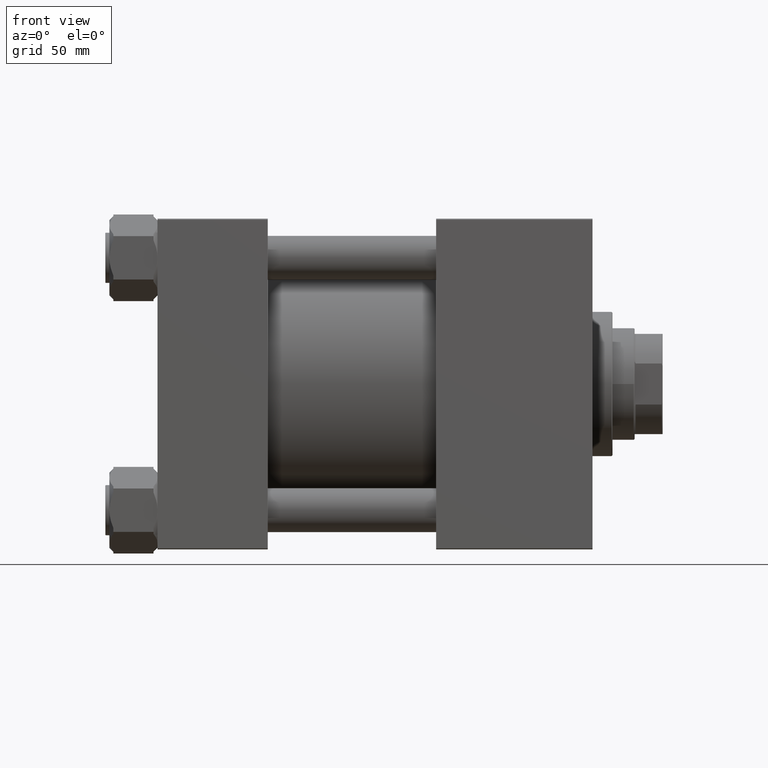
[diagram: clean part render]
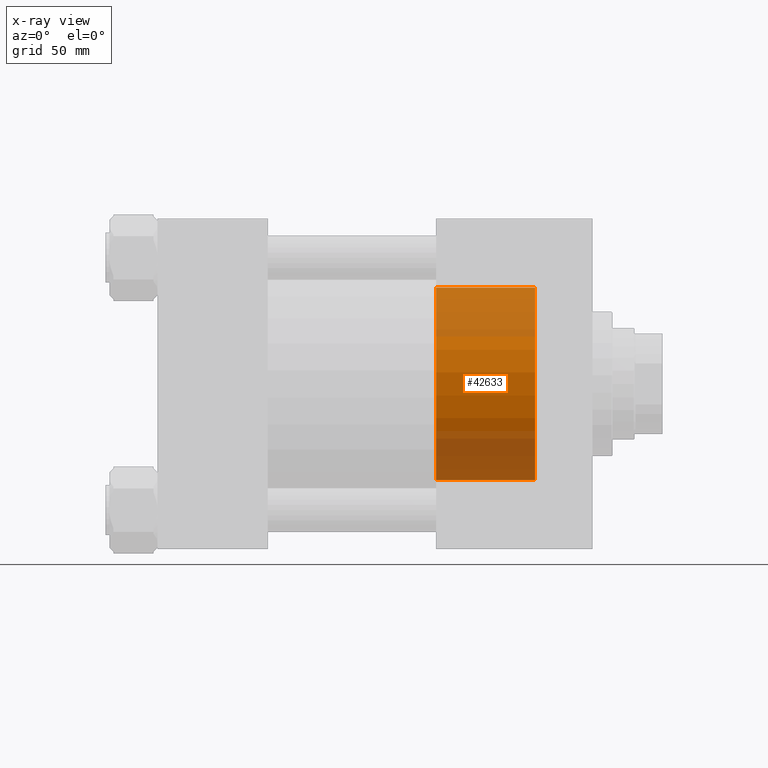
[diagram: x-ray — body ghosted, one internal face saturated and labeled with its STEP entity id]
A machine part, front view, then the same camera in x-ray: the body is ghosted and one INTERNAL B-rep face — a face not visible from any outside direction — is saturated and labeled: STEP entity #42633.
In plain terms, the highlighted cylindrical surface (partial cylindrical patch) has radius 48 mm, axis along (1, 0, 0).
Its self-contained STEP definition (entity closure, byte-faithful):
#462 = DIRECTION ( 'NONE',  ( 1.000000000000000000, -0.000000000000000000, -0.000000000000000000 ) ) ;
#480 = DIRECTION ( 'NONE',  ( 0.000000000000000000, 0.000000000000000000, -1.000000000000000000 ) ) ;
#2633 = VERTEX_POINT ( 'NONE', #8541 ) ;
#4687 = AXIS2_PLACEMENT_3D ( 'NONE', #33386, #22047, #37004 ) ;
#4846 = CARTESIAN_POINT ( 'NONE',  ( 188.3000000000000114, 0.000000000000000000, -48.00000000000000711 ) ) ;
#5097 = CARTESIAN_POINT ( 'NONE',  ( 188.3000000000000114, 0.000000000000000000, 0.000000000000000000 ) ) ;
#5122 = CARTESIAN_POINT ( 'NONE',  ( 139.0000000000000000, 0.000000000000000000, -48.00000000000000711 ) ) ;
#5610 = DIRECTION ( 'NONE',  ( 1.000000000000000000, 0.000000000000000000, 0.000000000000000000 ) ) ;
#6343 = CYLINDRICAL_SURFACE ( 'NONE', #4687, 48.00000000000000711 ) ;
#7383 = AXIS2_PLACEMENT_3D ( 'NONE', #41983, #48708, #13443 ) ;
#8541 = CARTESIAN_POINT ( 'NONE',  ( 188.3000000000000114, 5.878304635907296578E-15, 48.00000000000000711 ) ) ;
#11787 = CARTESIAN_POINT ( 'NONE',  ( -27.26450198781713041, 0.000000000000000000, -48.00000000000000711 ) ) ;
#12483 = ORIENTED_EDGE ( 'NONE', *, *, #22008, .F. ) ;
#13443 = DIRECTION ( 'NONE',  ( 0.000000000000000000, 0.000000000000000000, 1.000000000000000000 ) ) ;
#13832 = FACE_OUTER_BOUND ( 'NONE', #47098, .T. ) ;
#15456 = VERTEX_POINT ( 'NONE', #44352 ) ;
#16349 = ORIENTED_EDGE ( 'NONE', *, *, #18576, .T. ) ;
#17867 = VERTEX_POINT ( 'NONE', #5122 ) ;
#18225 = LINE ( 'NONE', #45755, #37788 ) ;
#18576 = EDGE_CURVE ( 'NONE', #17867, #15456, #25499, .T. ) ;
#22008 = EDGE_CURVE ( 'NONE', #17867, #24185, #47050, .T. ) ;
#22047 = DIRECTION ( 'NONE',  ( 1.000000000000000000, -0.000000000000000000, -0.000000000000000000 ) ) ;
#24169 = CIRCLE ( 'NONE', #48859, 48.00000000000000711 ) ;
#24185 = VERTEX_POINT ( 'NONE', #4846 ) ;
#25499 = CIRCLE ( 'NONE', #7383, 48.00000000000000711 ) ;
#31997 = EDGE_CURVE ( 'NONE', #2633, #24185, #24169, .T. ) ;
#33386 = CARTESIAN_POINT ( 'NONE',  ( -27.26450198781713041, 0.000000000000000000, 0.000000000000000000 ) ) ;
#34183 = DIRECTION ( 'NONE',  ( 1.000000000000000000, -0.000000000000000000, -0.000000000000000000 ) ) ;
#37004 = DIRECTION ( 'NONE',  ( 0.000000000000000000, 0.000000000000000000, -1.000000000000000000 ) ) ;
#37788 = VECTOR ( 'NONE', #34183, 1000.000000000000000 ) ;
#37876 = ORIENTED_EDGE ( 'NONE', *, *, #31997, .T. ) ;
#39323 = ORIENTED_EDGE ( 'NONE', *, *, #48188, .T. ) ;
#41983 = CARTESIAN_POINT ( 'NONE',  ( 139.0000000000000000, 0.000000000000000000, 0.000000000000000000 ) ) ;
#42633 = ADVANCED_FACE ( 'NONE', ( #13832 ), #6343, .F. ) ;
#44352 = CARTESIAN_POINT ( 'NONE',  ( 139.0000000000000000, 5.878304635907296578E-15, 48.00000000000000711 ) ) ;
#45755 = CARTESIAN_POINT ( 'NONE',  ( -27.26450198781713041, 5.878304635907296578E-15, 48.00000000000000711 ) ) ;
#46133 = VECTOR ( 'NONE', #462, 1000.000000000000000 ) ;
#47050 = LINE ( 'NONE', #11787, #46133 ) ;
#47098 = EDGE_LOOP ( 'NONE', ( #16349, #39323, #37876, #12483 ) ) ;
#48188 = EDGE_CURVE ( 'NONE', #15456, #2633, #18225, .T. ) ;
#48708 = DIRECTION ( 'NONE',  ( -1.000000000000000000, -0.000000000000000000, 0.000000000000000000 ) ) ;
#48859 = AXIS2_PLACEMENT_3D ( 'NONE', #5097, #5610, #480 ) ;